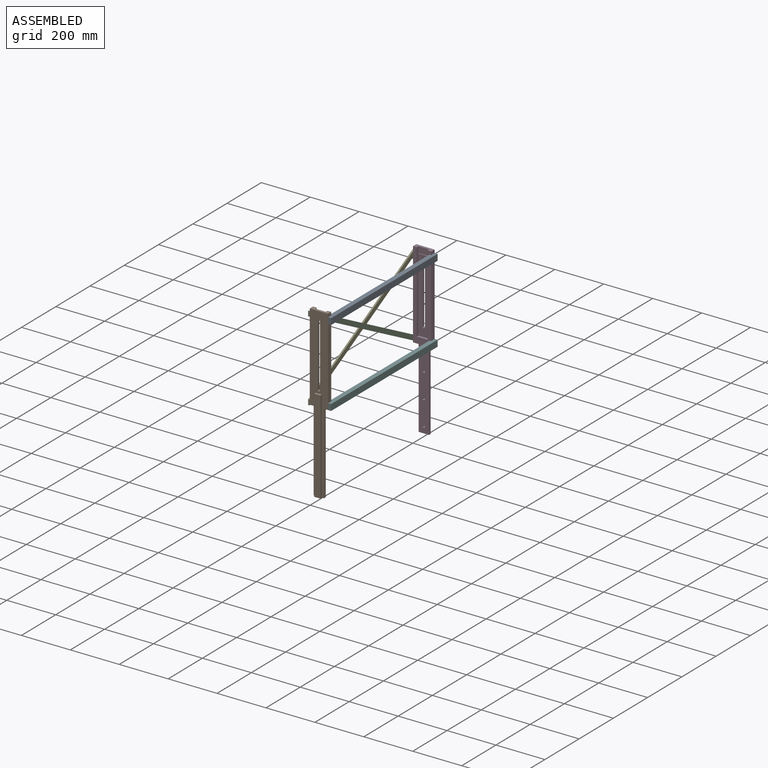
[diagram: assembled view]
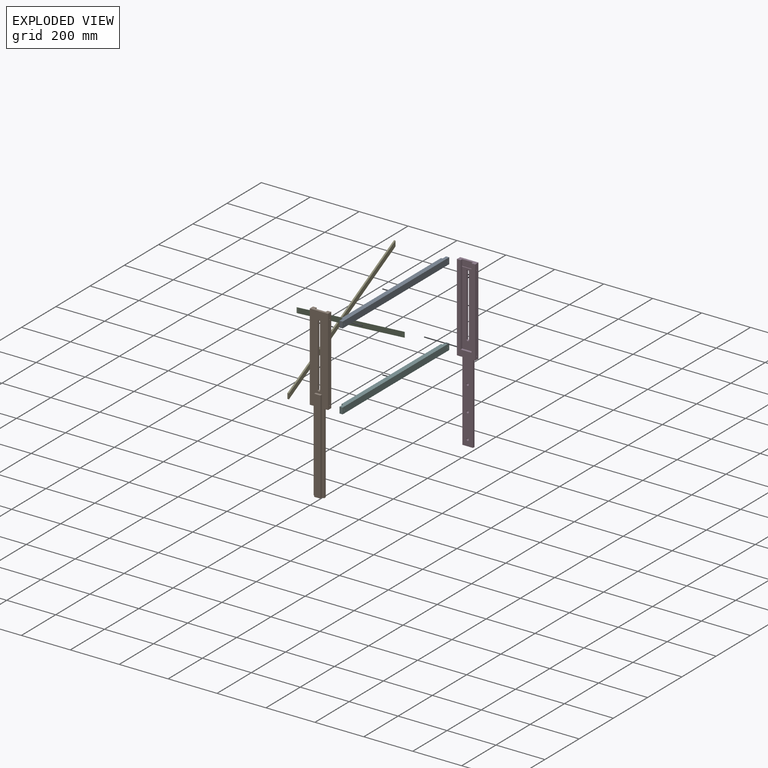
[diagram: exploded view]
GUIDED TOUR — MATED ASSEMBLY (Onshape document 9aa747c73efa29450929ee8a, AutoMate assembly 9aa747c73efa29450929ee8a_d70032300f34ae579669b0f8_8490096e088766e9c1160c59_default)

This assembly has 6 components, labeled P0..P5 below (a component is one placed occurrence of a part; the same part can appear more than once), held together by 9 mates. A mate is a constraint between two components; its type names the relative motion it leaves free:
  FASTENED — locks the two components together rigidly (no relative motion),
  PLANAR — leaves sliding in the plane through the listed point (normal = the listed direction) and rotation about that normal free.
Axis/direction vectors are unit vectors and 'through' points are millimeter coordinates, both in the assembly's world frame.

MATES
  1. FASTENED "Fastened 4": P1 <-> P2, direction (-1.000, 0.000, 0.000) through (-34.02, -343.89, 384.29) mm
  2. PLANAR "Planar 1": P1 <-> P5, direction (1.000, 0.000, 0.000) through (40.59, -343.89, 231.90) mm
  3. PLANAR "Planar 3": P2 <-> P3, direction (1.000, 0.000, 0.000) through (-34.02, -42.26, 225.54) mm
  4. PLANAR "Planar 4": P1 <-> P4, direction (-1.000, 0.000, 0.000) through (-34.02, -343.89, 231.90) mm
  5. FASTENED "Fastened 5": P4 <-> P1, direction (1.000, 0.000, 0.000) through (-34.02, -343.89, 66.79) mm
  6. FASTENED "Fastened 3": P3 <-> P0, direction (1.000, 0.000, 0.000) through (40.59, 259.36, 384.29) mm
  7. FASTENED "Fastened 1": P0 <-> P1, direction (-1.000, 0.000, 0.000) through (40.59, -343.89, 384.29) mm
  8. FASTENED "Fastened 2": P1 <-> P5, direction (1.000, 0.000, 0.000) through (40.59, -343.89, 66.79) mm
  9. PLANAR "Planar 2": P0 <-> P1, direction (-1.000, 0.000, 0.000) through (40.59, -343.08, 384.29) mm

ASSEMBLY ORDER
  1. P4 — the base component [order verified]
  2. P2 [order verified]
  3. P1 [order verified]
  4. P3 [order verified]
  5. P5 [order verified]
  6. P0 [order verified]
(P2 verified with a relaxed clearance tolerance: the source model stores slight part interference there.)
Order-tag legend:
  [order verified] — this step's position reverses a verified removal order: the component was checked to insert without passing through the ones already placed.

Of the 6 components, 2 carry the full construction recipe — the FeatureScript program that regenerates the part's solid from scratch; the rest are supplied as boundary geometry only.
Each toured component is shown spotlighted twice — in the assembled view, then in the exploded view, where a leader line traces a displaced component back to its assembled socket (saturated green if recipe-attached, orange if geometry-only; every other component desaturated gray) — followed by its recipe or geometry summary and the mates that hold it.
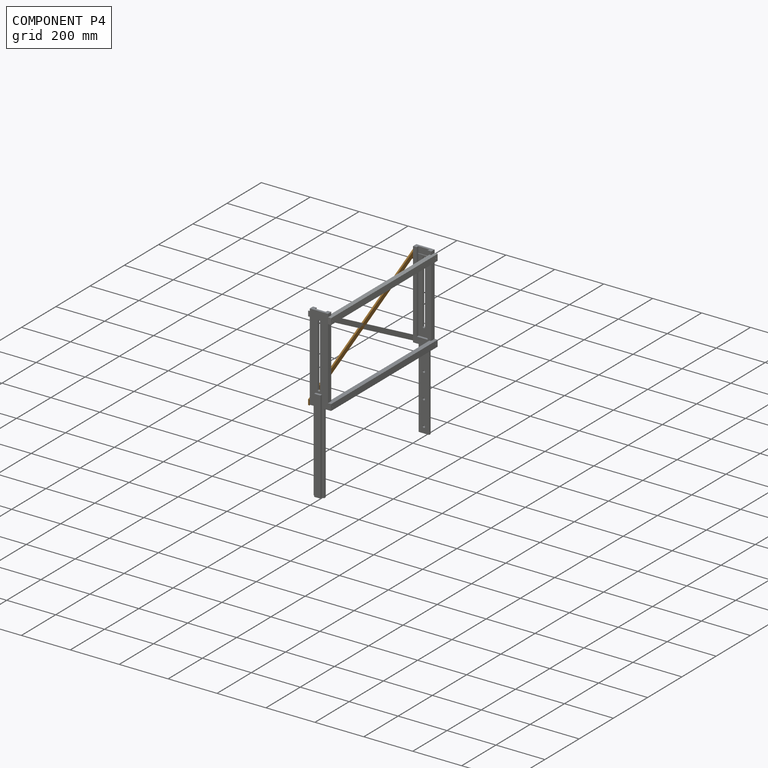
[diagram: component P4 — assembled]
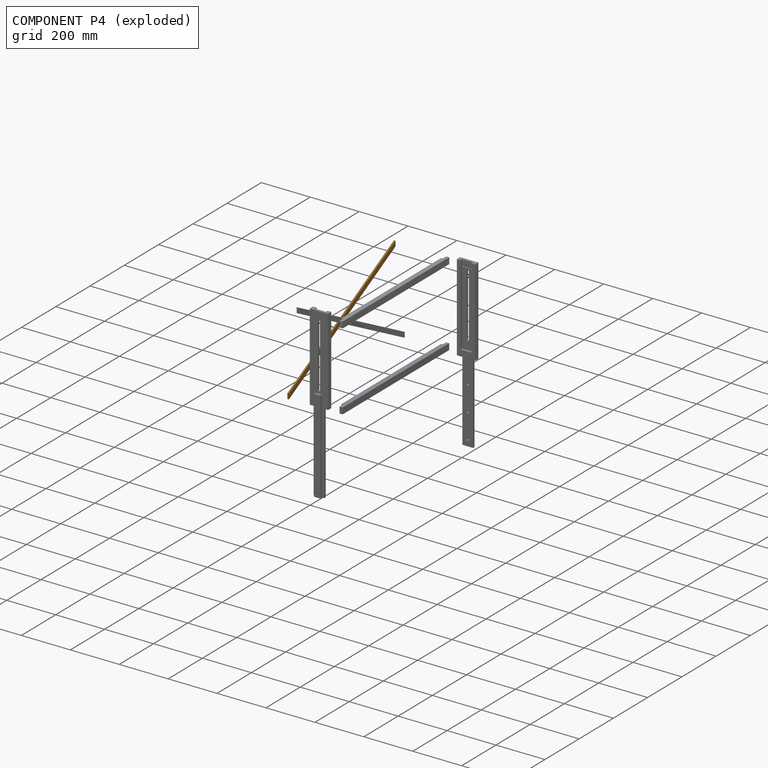
[diagram: component P4 — exploded]
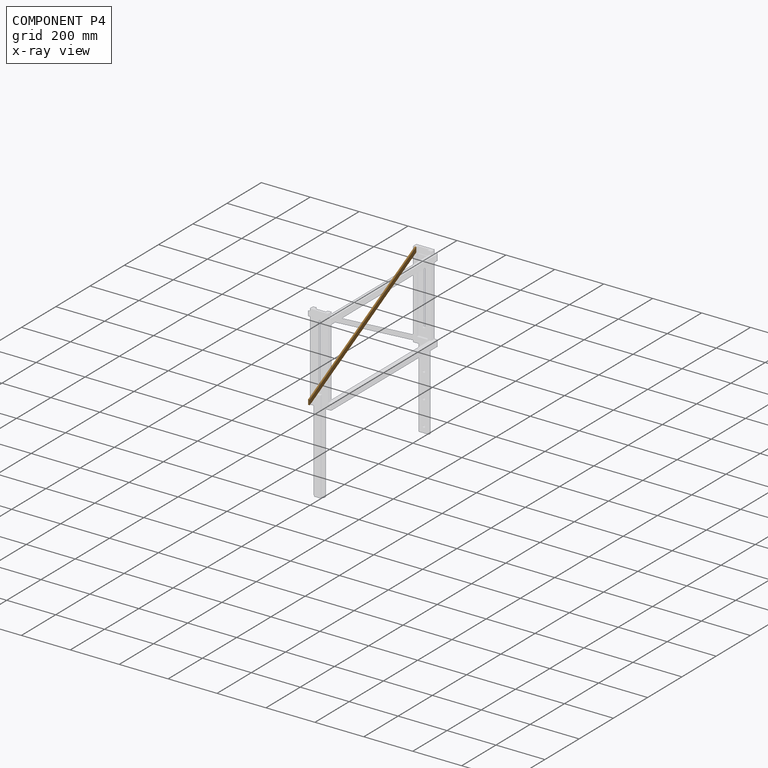
[diagram: component P4 — x-ray view]
COMPONENT P4 — geometry summary (no construction recipe available for this part):
  bounding box: 622.3 x 349.1 x 6.4 mm
  B-rep topology: 1 solid, 8 faces, 40 edges
  volume: 84967 mm^3 (6% of its bounding box)
  symmetry: 2-fold rotationally symmetric about the x axis; mirror-symmetric across its x mid-plane
Held by: PLANAR mate "Planar 4" to P1; FASTENED mate "Fastened 5" to P1.
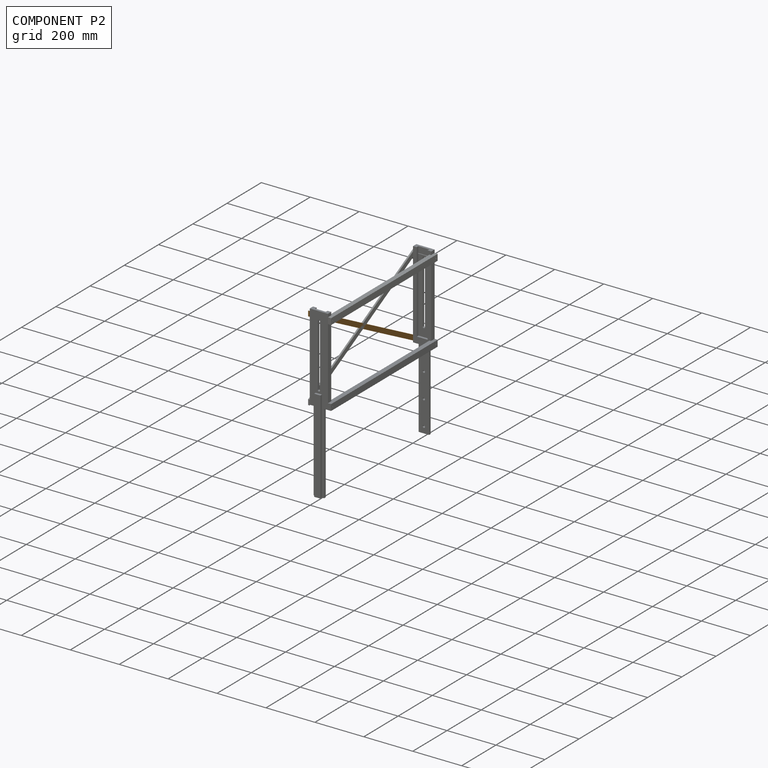
[diagram: component P2 — assembled]
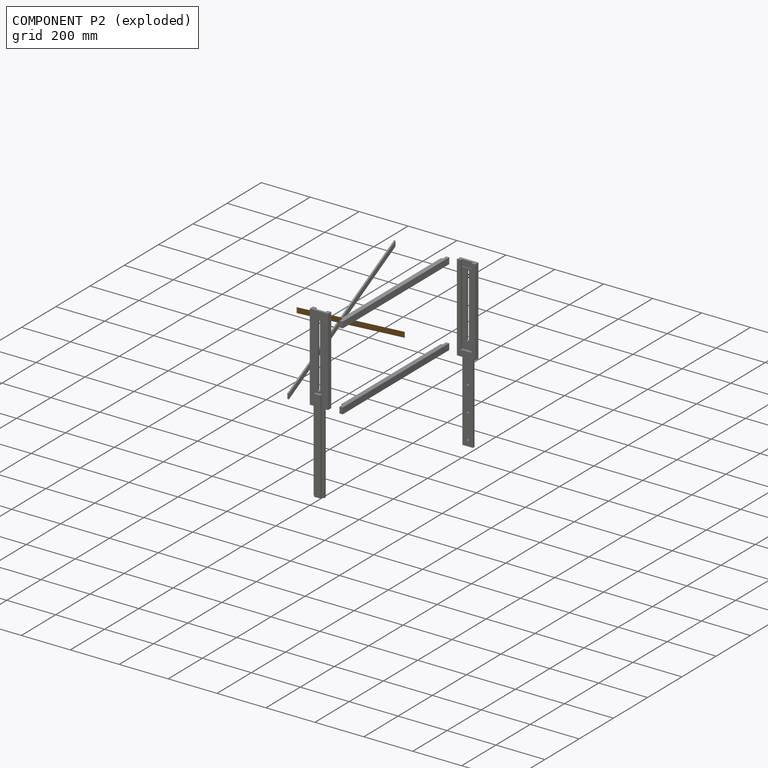
[diagram: component P2 — exploded]
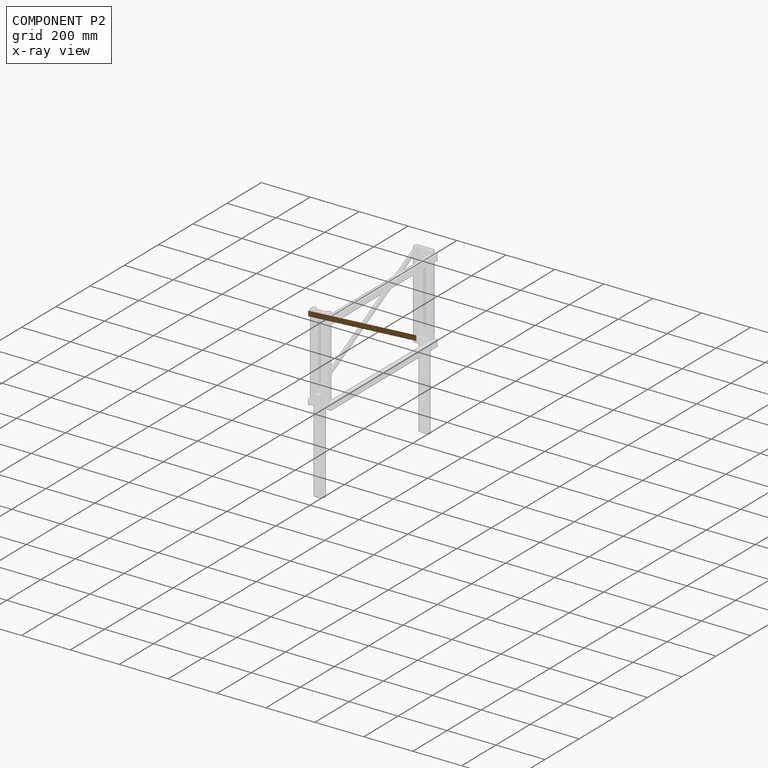
[diagram: component P2 — x-ray view]
COMPONENT P2 — geometry summary (no construction recipe available for this part):
  bounding box: 622.3 x 349.1 x 6.4 mm
  B-rep topology: 1 solid, 8 faces, 40 edges
  volume: 84967 mm^3 (6% of its bounding box)
  symmetry: 2-fold rotationally symmetric about the x axis; mirror-symmetric across its x mid-plane
Held by: FASTENED mate "Fastened 4" to P1; PLANAR mate "Planar 3" to P3.
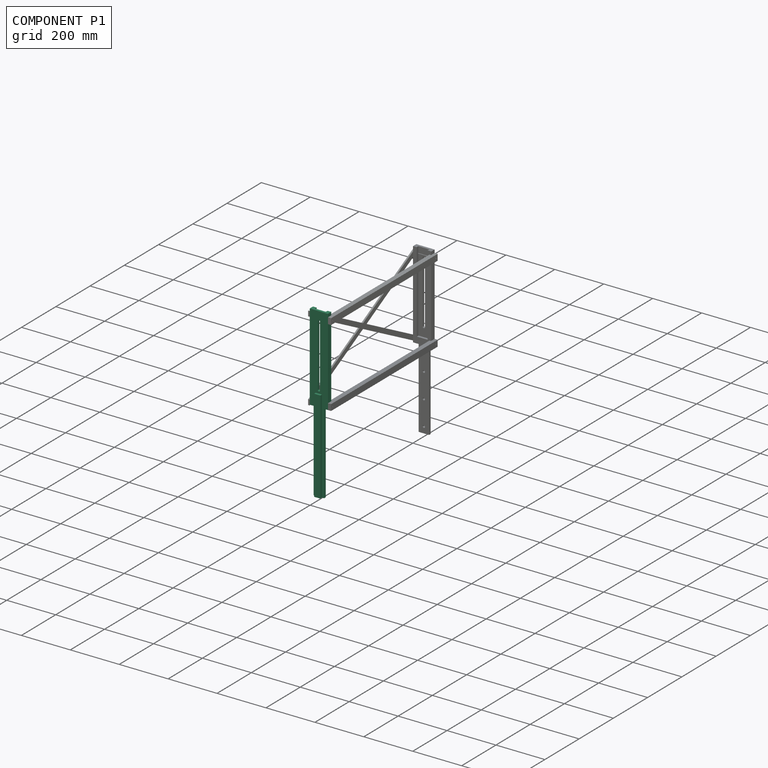
[diagram: component P1 — assembled]
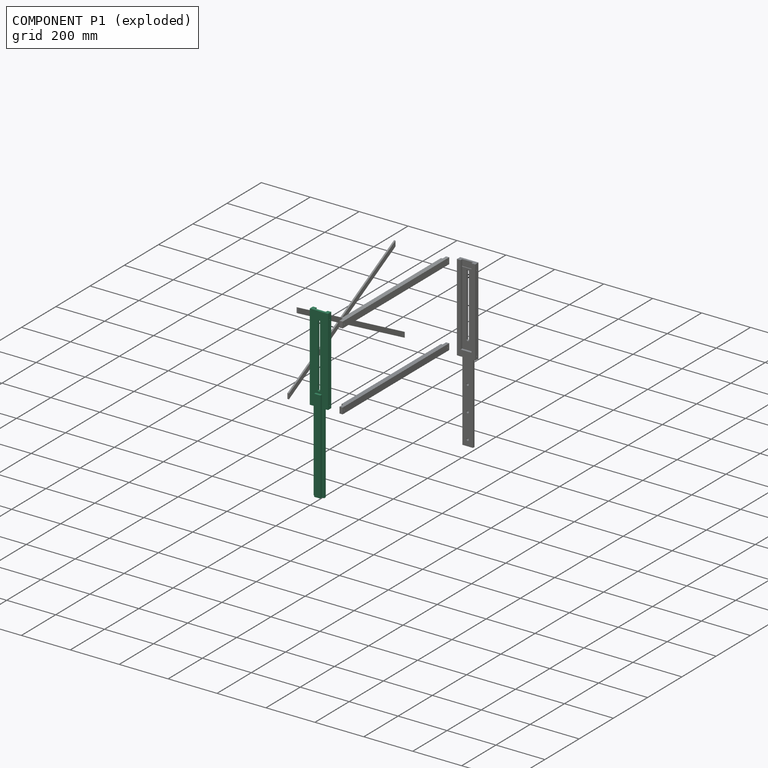
[diagram: component P1 — exploded]
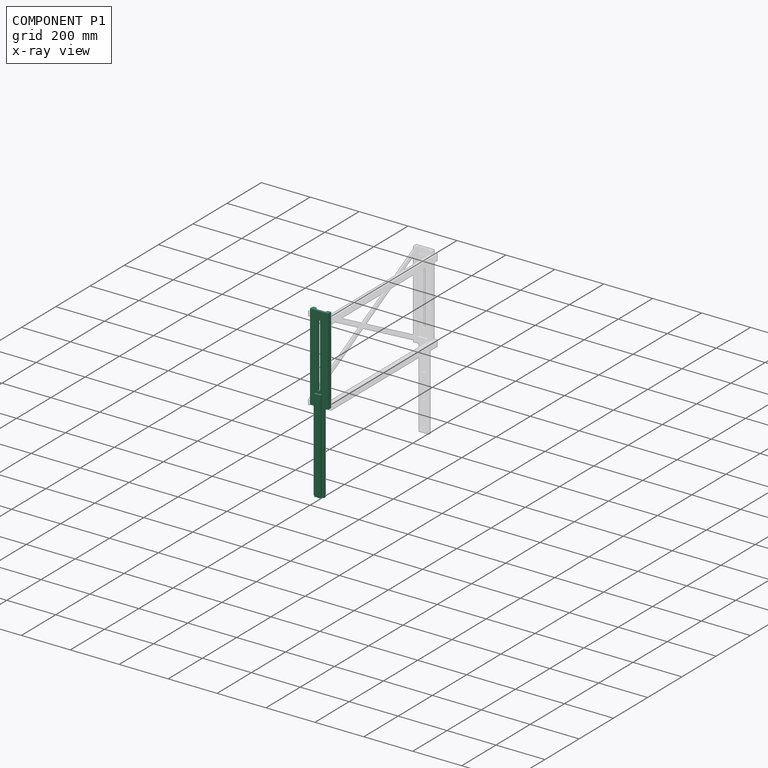
[diagram: component P1 — x-ray view]
COMPONENT P1 — recipe-attached (CADFS 00436313, mesh-verified: the recipe's output STEP matches this component's geometry to below the mesh-comparison resolution (tessellation chordal tolerance ~1.04 mm)).
Held by: FASTENED mate "Fastened 4" to P2; PLANAR mate "Planar 1" to P5; PLANAR mate "Planar 4" to P4; FASTENED mate "Fastened 5" to P4; FASTENED mate "Fastened 1" to P0; FASTENED mate "Fastened 2" to P5; PLANAR mate "Planar 2" to P0.
Construction recipe (FeatureScript — the CAD program that rebuilds this solid; sketch coordinates are in the units given by the * unit suffixes, e.g. mm):

FeatureScript 1511;
import(path : "onshape/std/geometry.fs", version : "1511.0");
import(path : "onshape/std/common.fs", version : "1511.0");
const mm = millimeter;
const VERTEX = EntityType.VERTEX;
const EDGE = EntityType.EDGE;
const FACE = EntityType.FACE;
const BODY = EntityType.BODY;
function v(x, y){return vector(x, y);}
function OD(order){return orderDisambiguation(order);}
function OSD(set){return originalSetDisambiguation(set);}
function TD(topology){return topologyDisambiguation(topology);}
function TDD(query){return trueDependencyDisambiguation(query);}
function sQuery(a, b, c) {return sketchEntityQuery(a, b, c);}

annotation { "Feature Type Name" : "Feature", "Feature Type Description" : "" }
export const myFeature = defineFeature(function(context is Context, id is Id, definition is map)
    precondition{}
    {
        {
            var Q0;
            Q0=qCreatedBy(makeId("Top.planeOp"),FACE);
            var sketch = newSketch(context, id + "F0", { "sketchPlane" : qUnion([Q0])});
            skLineSegment(sketch, "E0.bottom", {"start": v(37.3, -9.52) * mm, "end": v(-37.3, -9.53) * mm});
            skLineSegment(sketch, "E0.top", {"start": v(37.3, 9.53) * mm, "end": v(-37.3, 9.53) * mm});
            skLineSegment(sketch, "E0.left", {"start": v(37.3, -9.52) * mm, "end": v(37.3, 9.53) * mm});
            skLineSegment(sketch, "E0.right", {"start": v(-37.3, -9.53) * mm, "end": v(-37.3, 9.53) * mm});
            skPoint(sketch, "E0.middle", {"position": v(0, 0) * mm});
            skSolve(sketch);
        }
        {
            var Q0;
            Q0 = qSketchRegion(id + "F0", true);
            extrude(context, id + "F1", {"entities" : qUnion([Q0]), "endBound" : BoundingType.SYMMETRIC, "depth" : 685.8 * mm});
        }
        {
            var Q0;
            Q0=makeQuery(id+"F1.opExtrude","CAP_FACE",FACE,{"disambiguationData":[OSD([sQuery(id+"F0.wireOp",EDGE,"E0.bottom"),sQuery(id+"F0.wireOp",EDGE,"E0.top"),sQuery(id+"F0.wireOp",EDGE,"E0.left"),sQuery(id+"F0.wireOp",EDGE,"E0.right")])],"isStart":true});
            var sketch = newSketch(context, id + "F2", { "sketchPlane" : qUnion([Q0])});
            skLineSegment(sketch, "E1.bottom", {"start": v(-12.7, -19.05) * mm, "end": v(12.7, -19.05) * mm});
            skLineSegment(sketch, "E1.top", {"start": v(-12.7, 0) * mm, "end": v(12.7, 0) * mm});
            skLineSegment(sketch, "E1.left", {"start": v(-12.7, -19.05) * mm, "end": v(-12.7, 0) * mm});
            skLineSegment(sketch, "E1.right", {"start": v(12.7, -19.05) * mm, "end": v(12.7, 0) * mm});
            skPoint(sketch, "E1.middle", {"position": v(0, -9.52) * mm});
            skSolve(sketch);
        }
        {
            var Q0;
            Q0 = qSketchRegion(id + "F2", true);
            extrude(context, id + "F3", {"entities" : qUnion([Q0]), "operationType" : NewBodyOperationType.ADD, "oppositeDirection" : true, "depth" : 381 * mm, "offsetDistance" : 25.4 * mm});
        }
        {
            var Q0;
            Q0=makeQuery(id+"F1.opExtrude","CAP_FACE",FACE,{"disambiguationData":[OSD([sQuery(id+"F0.wireOp",EDGE,"E0.bottom"),sQuery(id+"F0.wireOp",EDGE,"E0.top"),sQuery(id+"F0.wireOp",EDGE,"E0.left"),sQuery(id+"F0.wireOp",EDGE,"E0.right")])],"isStart":false});
            var sketch = newSketch(context, id + "F4", { "sketchPlane" : qUnion([Q0])});
            skLineSegment(sketch, "E2.bottom", {"start": v(22.23, -19.05) * mm, "end": v(-22.22, -19.05) * mm});
            skLineSegment(sketch, "E2.top", {"start": v(22.23, 0) * mm, "end": v(-22.22, 0) * mm});
            skLineSegment(sketch, "E2.left", {"start": v(22.23, -19.05) * mm, "end": v(22.23, 0) * mm});
            skLineSegment(sketch, "E2.right", {"start": v(-22.22, -19.05) * mm, "end": v(-22.22, 0) * mm});
            skPoint(sketch, "E2.middle", {"position": v(0, -9.52) * mm});
            skSolve(sketch);
        }
        {
            var Q0;
            Q0 = qSketchRegion(id + "F4", true);
            extrude(context, id + "F5", {"entities" : qUnion([Q0]), "operationType" : NewBodyOperationType.REMOVE, "oppositeDirection" : true, "depth" : 330.2 * mm});
        }
        {
            var Q0;
            Q0=makeQuery(id+"F1.opExtrude","CAP_FACE",FACE,{"disambiguationData":[OSD([sQuery(id+"F0.wireOp",EDGE,"E0.bottom"),sQuery(id+"F0.wireOp",EDGE,"E0.top"),sQuery(id+"F0.wireOp",EDGE,"E0.left"),sQuery(id+"F0.wireOp",EDGE,"E0.right")])],"isStart":true});
            var sketch = newSketch(context, id + "F6", { "sketchPlane" : qUnion([Q0])});
            skLineSegment(sketch, "E3.bottom", {"start": v(-37.3, -9.53) * mm, "end": v(-21.43, -9.53) * mm});
            skLineSegment(sketch, "E3.top", {"start": v(-37.3, 9.53) * mm, "end": v(-21.43, 9.53) * mm});
            skLineSegment(sketch, "E3.left", {"start": v(-37.3, -9.53) * mm, "end": v(-37.3, 9.53) * mm});
            skLineSegment(sketch, "E3.right", {"start": v(-21.43, -9.53) * mm, "end": v(-21.43, 9.53) * mm});
            skLineSegment(sketch, "E4.bottom", {"start": v(37.3, -9.53) * mm, "end": v(21.43, -9.53) * mm});
            skLineSegment(sketch, "E4.top", {"start": v(37.3, 9.53) * mm, "end": v(21.43, 9.53) * mm});
            skLineSegment(sketch, "E4.left", {"start": v(37.3, -9.53) * mm, "end": v(37.3, 9.53) * mm});
            skLineSegment(sketch, "E4.right", {"start": v(21.43, -9.53) * mm, "end": v(21.43, 9.53) * mm});
            skLineSegment(sketch, "E5.bottom", {"start": v(37.3, -9.53) * mm, "end": v(30.96, -9.53) * mm});
            skLineSegment(sketch, "E5.top", {"start": v(37.3, 9.52) * mm, "end": v(30.96, 9.52) * mm});
            skLineSegment(sketch, "E5.left", {"start": v(37.3, -9.53) * mm, "end": v(37.3, 9.52) * mm});
            skLineSegment(sketch, "E5.right", {"start": v(30.96, -9.53) * mm, "end": v(30.96, 9.52) * mm});
            skLineSegment(sketch, "E6.bottom", {"start": v(37.3, 9.52) * mm, "end": v(37.3, 9.52) * mm});
            skLineSegment(sketch, "E6.top", {"start": v(37.3, 9.52) * mm, "end": v(37.3, 9.52) * mm});
            skLineSegment(sketch, "E6.left", {"start": v(37.3, 9.52) * mm, "end": v(37.3, 9.52) * mm});
            skLineSegment(sketch, "E6.right", {"start": v(37.3, 9.52) * mm, "end": v(37.3, 9.52) * mm});
            skLineSegment(sketch, "E7.bottom", {"start": v(-37.3, -9.53) * mm, "end": v(-30.96, -9.53) * mm});
            skLineSegment(sketch, "E7.top", {"start": v(-37.3, 9.52) * mm, "end": v(-30.96, 9.52) * mm});
            skLineSegment(sketch, "E7.left", {"start": v(-37.3, -9.53) * mm, "end": v(-37.3, 9.52) * mm});
            skLineSegment(sketch, "E7.right", {"start": v(-30.96, -9.53) * mm, "end": v(-30.96, 9.52) * mm});
            skLineSegment(sketch, "E8.0.0", {"start": v(-22.22, 0) * mm, "end": v(-22.22, 9.53) * mm});
            skLineSegment(sketch, "E8.0.1", {"start": v(-22.22, 9.53) * mm, "end": v(22.23, 9.52) * mm});
            skLineSegment(sketch, "E8.0.2", {"start": v(22.23, 9.52) * mm, "end": v(22.23, 0) * mm});
            skLineSegment(sketch, "E8.0.3", {"start": v(22.23, 0) * mm, "end": v(-22.22, 0) * mm});
            skSolve(sketch);
        }
        {
            var Q0;
            Q0 = qSketchRegion(id + "F6", true);
            extrude(context, id + "F7", {"entities" : qUnion([Q0]), "operationType" : NewBodyOperationType.REMOVE, "oppositeDirection" : true, "depth" : 330.2 * mm});
        }
        {
            var Q0;
            Q0=makeQuery(id+"F1.opExtrude","SWEPT_FACE",FACE,{"disambiguationData":[OSD([sQuery(id+"F0.wireOp",EDGE,"E0.top")])]});
            var sketch = newSketch(context, id + "F8", { "sketchPlane" : qUnion([Q0])});
            skPoint(sketch, "E9", {"position": v(0, -317.5) * mm});
            skPoint(sketch, "E10", {"position": v(0, -215.9) * mm});
            skPoint(sketch, "E11", {"position": v(0, -114.3) * mm});
            skPoint(sketch, "E12", {"position": v(0, 50.8) * mm});
            skPoint(sketch, "E13", {"position": v(0, 304.8) * mm});
            skSolve(sketch);
        }
        {
            var Q0;
            Q0=sQuery(id+"F8.wireOp",VERTEX,"E9");
            var Q1;
            Q1=sQuery(id+"F8.wireOp",VERTEX,"E10");
            var Q2;
            Q2=sQuery(id+"F8.wireOp",VERTEX,"E11");
            var Q3;
            Q3=sQuery(id+"F8.wireOp",VERTEX,"E12");
            var Q4;
            Q4=sQuery(id+"F8.wireOp",VERTEX,"E13");
            var Q5;
            Q5=makeQuery(id+"F1.opExtrude","SWEPT_BODY",BODY,{"disambiguationData":[OSD([sQuery(id+"F0.wireOp",EDGE,"E0.bottom"),sQuery(id+"F0.wireOp",EDGE,"E0.top"),sQuery(id+"F0.wireOp",EDGE,"E0.left"),sQuery(id+"F0.wireOp",EDGE,"E0.right")])]});
            hole(context, id + "F9", {"style" : HoleStyle.SIMPLE, "endStyle" : HoleEndStyle.THROUGH, "holeDiameter" : 9.52 * mm, "isTappedThrough" : true, "tappedDepth" : 12.7 * mm, "tapClearance" : 3, "locations" : qUnion([Q0, Q1, Q2, Q3, Q4]), "scope" : qUnion([Q5])});
        }
        {
            var Q0;
            Q0=makeQuery(id+"F1.opExtrude","SWEPT_FACE",FACE,{"disambiguationData":[OSD([sQuery(id+"F0.wireOp",EDGE,"E0.top")])]});
            var sketch = newSketch(context, id + "F10", { "sketchPlane" : qUnion([Q0])});
            skLineSegment(sketch, "E14.bottom", {"start": v(-4.76, 304.58) * mm, "end": v(4.75, 304.58) * mm});
            skLineSegment(sketch, "E14.top", {"start": v(-4.76, 50.42) * mm, "end": v(4.75, 50.42) * mm});
            skLineSegment(sketch, "E14.left", {"start": v(-4.76, 304.58) * mm, "end": v(-4.76, 50.42) * mm});
            skLineSegment(sketch, "E14.right", {"start": v(4.75, 304.58) * mm, "end": v(4.75, 50.42) * mm});
            skSolve(sketch);
        }
        {
            var Q0;
            Q0 = qSketchRegion(id + "F10", true);
            extrude(context, id + "F11", {"entities" : qUnion([Q0]), "operationType" : NewBodyOperationType.REMOVE, "endBound" : BoundingType.THROUGH_ALL, "oppositeDirection" : true, "depth" : 25.4 * mm});
        }
        {
            var Q0;
            Q0=makeQuery(id+"F1.opExtrude","SWEPT_FACE",FACE,{"disambiguationData":[OSD([sQuery(id+"F0.wireOp",EDGE,"E0.right")])]});
            var sketch = newSketch(context, id + "F12", { "sketchPlane" : qUnion([Q0])});
            skPoint(sketch, "E15", {"position": v(0, 317.5) * mm});
            skPoint(sketch, "E16", {"position": v(0, 0) * mm});
            skSolve(sketch);
        }
        {
            var Q0;
            Q0=sQuery(id+"F12.wireOp",VERTEX,"E15");
            var Q1;
            Q1=sQuery(id+"F12.wireOp",VERTEX,"E16");
            var Q2;
            Q2=makeQuery(id+"F1.opExtrude","SWEPT_BODY",BODY,{"disambiguationData":[OSD([sQuery(id+"F0.wireOp",EDGE,"E0.bottom"),sQuery(id+"F0.wireOp",EDGE,"E0.top"),sQuery(id+"F0.wireOp",EDGE,"E0.left"),sQuery(id+"F0.wireOp",EDGE,"E0.right")])]});
            hole(context, id + "F13", {"style" : HoleStyle.SIMPLE, "endStyle" : HoleEndStyle.THROUGH, "holeDiameter" : 3.17 * mm, "isTappedThrough" : true, "tappedDepth" : 12.7 * mm, "tapClearance" : 3, "locations" : qUnion([Q0, Q1]), "scope" : qUnion([Q2])});
        }
    });
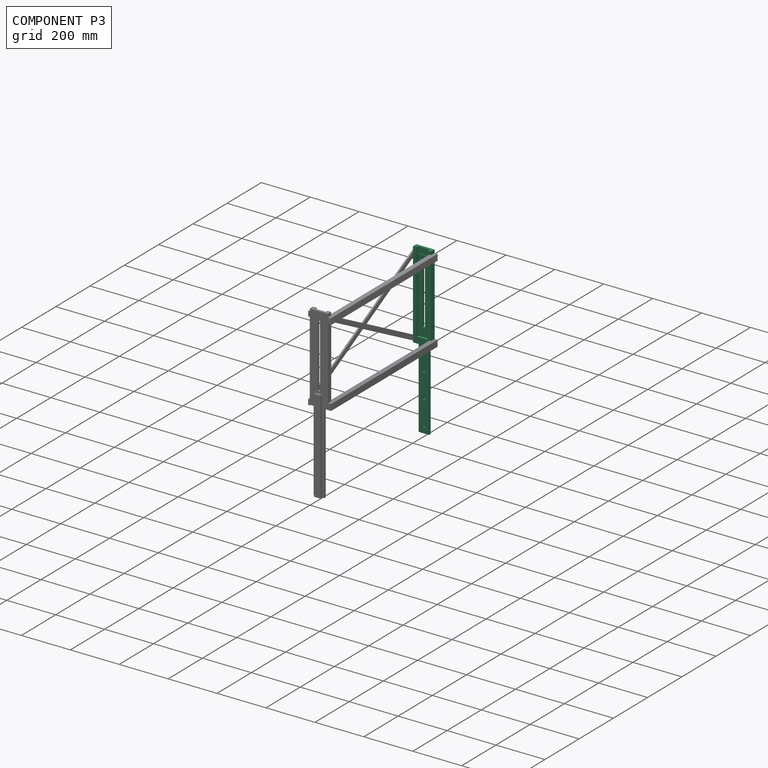
[diagram: component P3 — assembled]
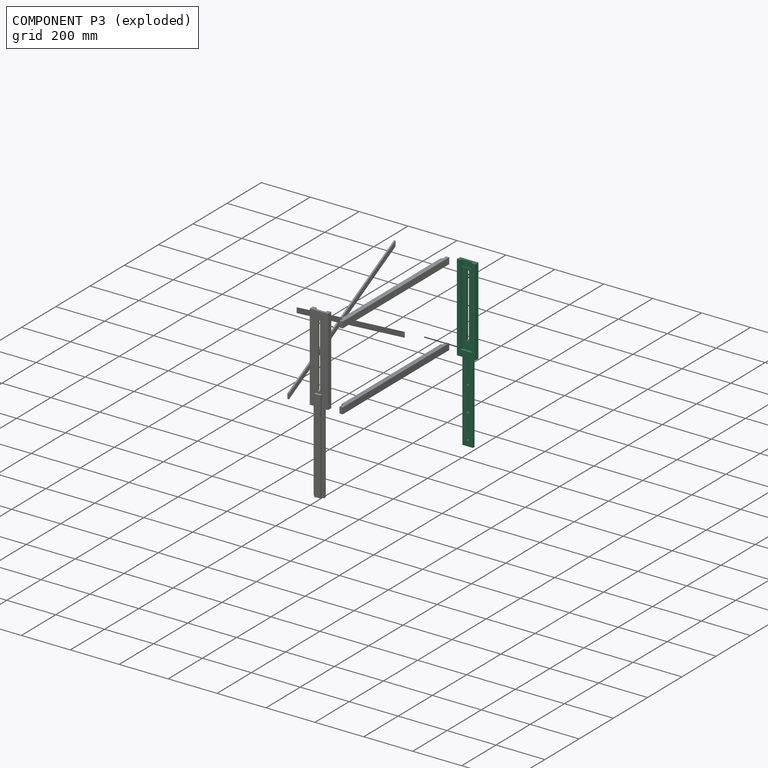
[diagram: component P3 — exploded]
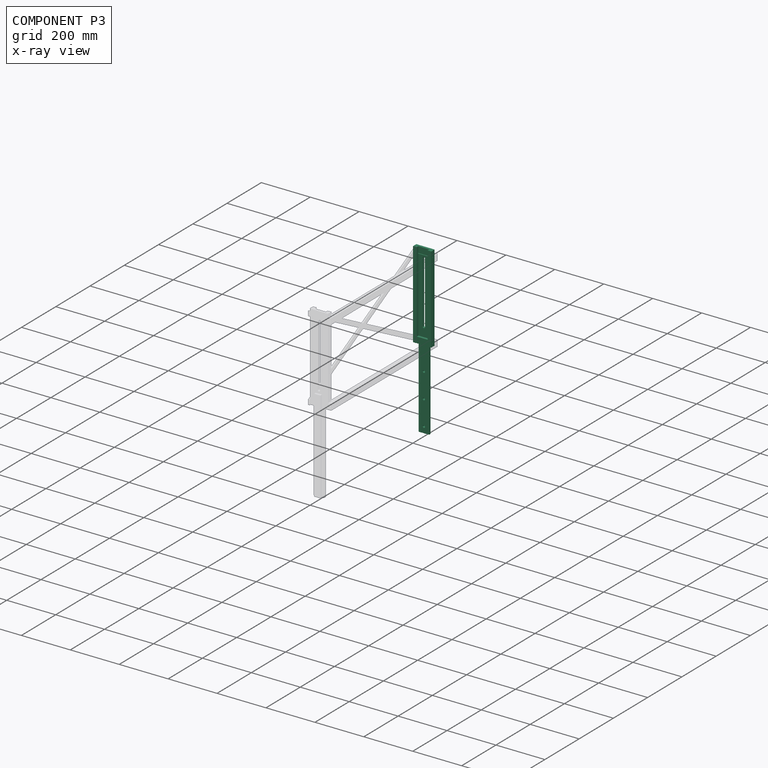
[diagram: component P3 — x-ray view]
COMPONENT P3 — same part as P1 (CADFS 00436313); its construction recipe is shown at P1.
Held by: PLANAR mate "Planar 3" to P2; FASTENED mate "Fastened 3" to P0.
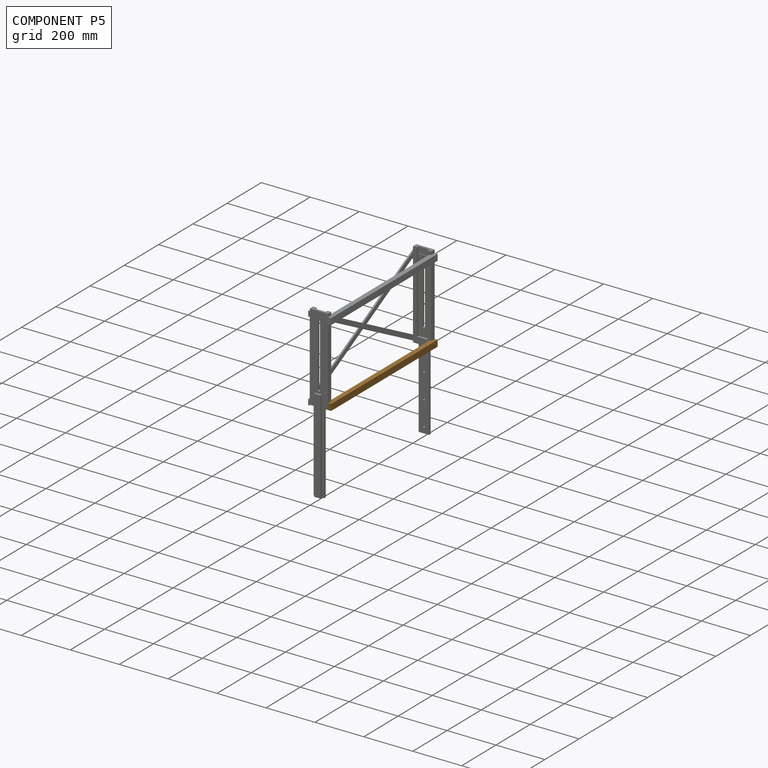
[diagram: component P5 — assembled]
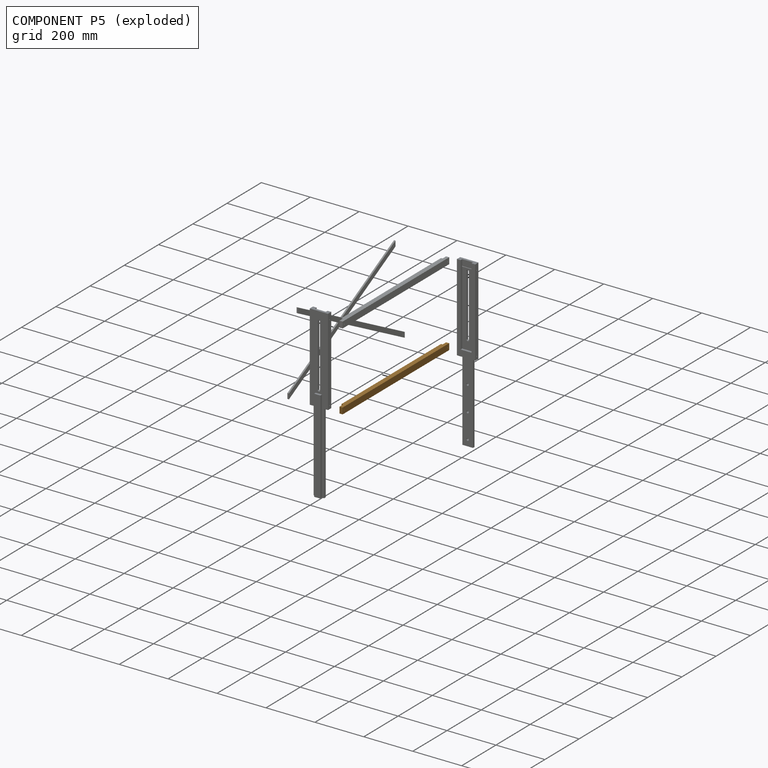
[diagram: component P5 — exploded]
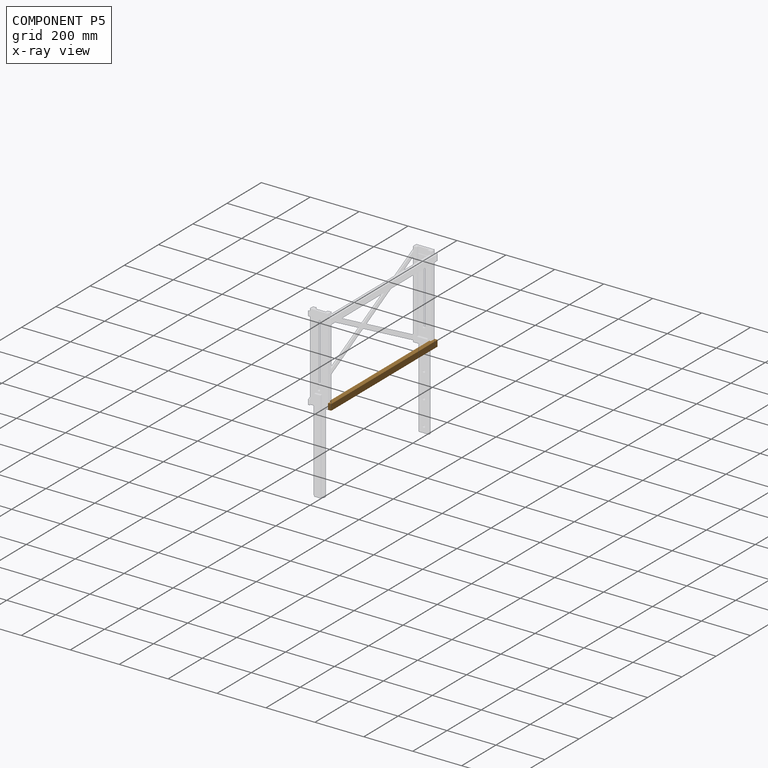
[diagram: component P5 — x-ray view]
COMPONENT P5 — geometry summary (no construction recipe available for this part):
  bounding box: 622.3 x 25.4 x 19.1 mm
  B-rep topology: 1 solid, 12 faces, 64 edges
  volume: 294254 mm^3 (98% of its bounding box)
  symmetry: 2-fold rotationally symmetric about the x axis; mirror-symmetric across its y mid-plane, z mid-plane
Held by: PLANAR mate "Planar 1" to P1; FASTENED mate "Fastened 2" to P1.
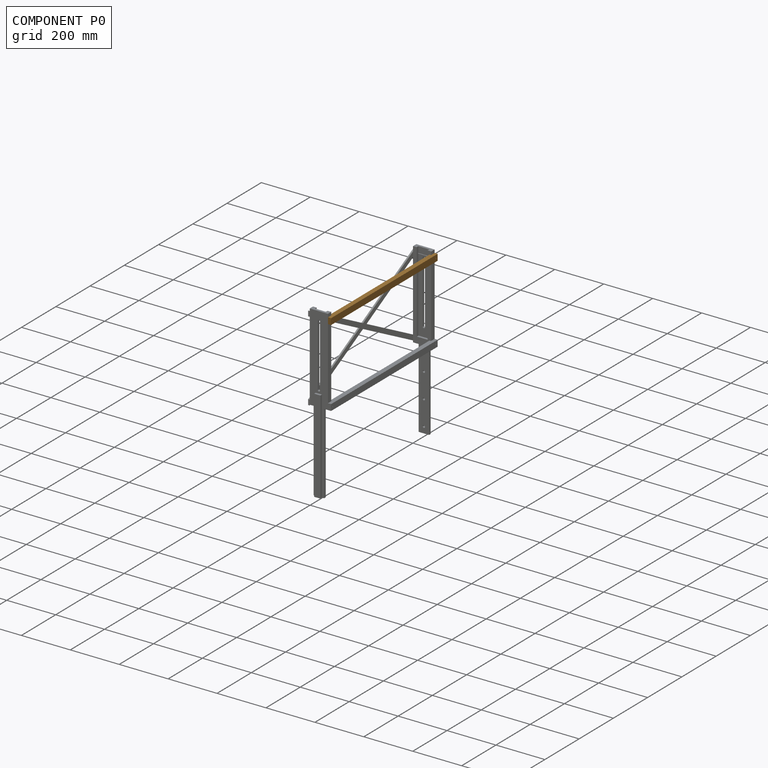
[diagram: component P0 — assembled]
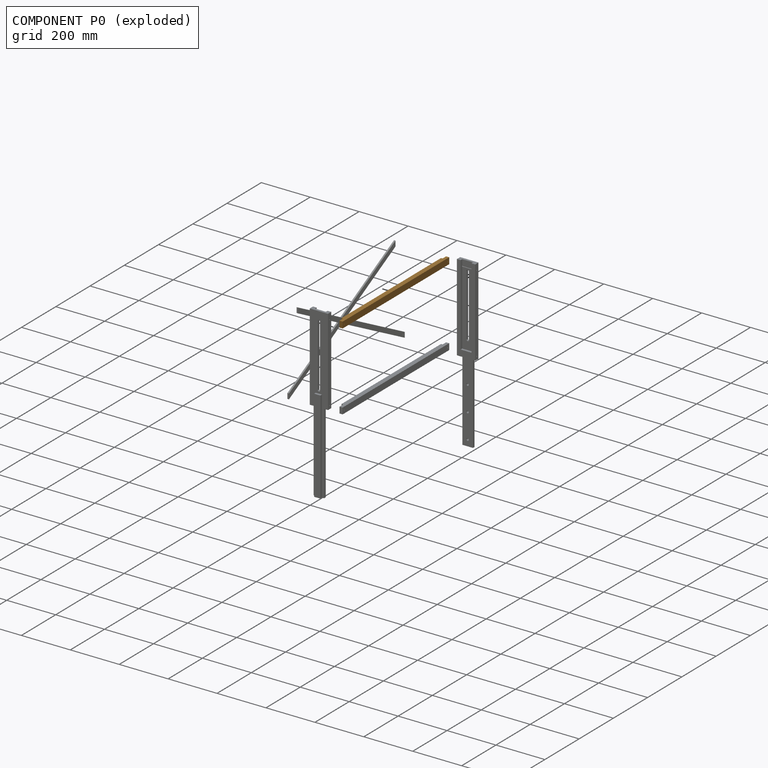
[diagram: component P0 — exploded]
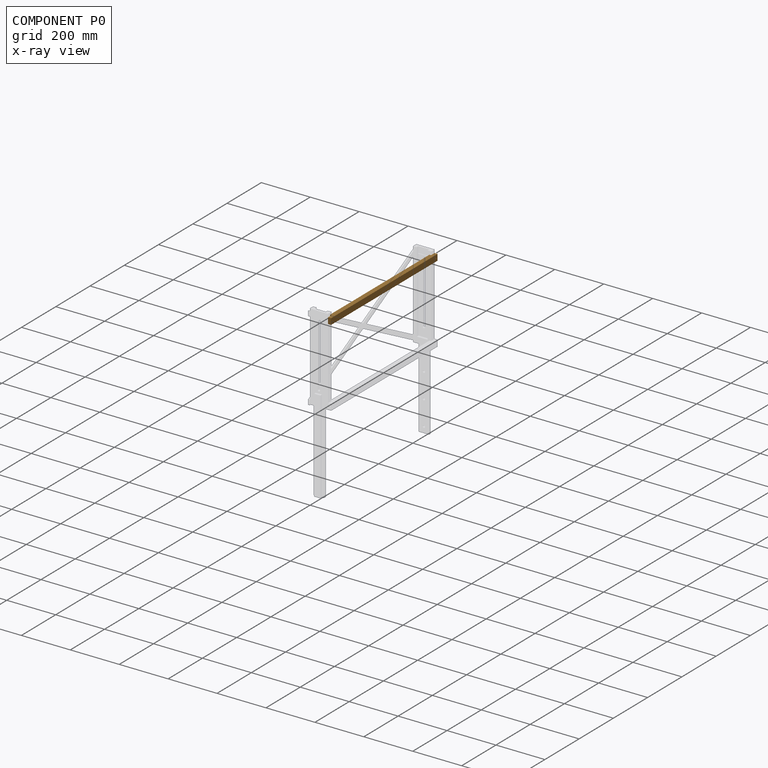
[diagram: component P0 — x-ray view]
COMPONENT P0 — geometry summary (no construction recipe available for this part):
  bounding box: 622.3 x 25.4 x 19.1 mm
  B-rep topology: 1 solid, 12 faces, 64 edges
  volume: 294254 mm^3 (98% of its bounding box)
  symmetry: 2-fold rotationally symmetric about the x axis; mirror-symmetric across its y mid-plane, z mid-plane
Held by: FASTENED mate "Fastened 3" to P3; FASTENED mate "Fastened 1" to P1; PLANAR mate "Planar 2" to P1.
PROVENANCE & LICENSES
Assembly (occurrences, transforms, mates, per-part STEP geometry): AutoMate dataset, Zenodo record 7776208, CC0.
Construction recipes: CADFS (HuggingFace VladPyatov/CADFS, CC-BY-4.0, layered over the ABC dataset), FeatureScript reconstruction programs keyed by ABC model id.
Join: ABC meta listings map ABC model id -> Onshape documentId; within a shared document, parts are matched by geometric signature (bounding-box dims + volume at 0.1% relative tolerance, exact B-rep face/solid counts).
Verification: 2 of this assembly's 6 components carry a recipe attachment, and every attachment is mesh-verified: the CADFS STEP and the AutoMate member STEP were compared as meshes in their shared local frame (symmetric sampled-point-to-mesh distance); worst across the 2 attachments: below the mesh-comparison resolution (tessellation chordal tolerance ~1.04 mm) on a 690 mm part.
Renders: orthographic iso camera (az 35 / el 25); the floor grid conveys scale (grid pitch printed in each image; no ruler). In the exploded view each component is displaced by its stored offset vector: the offsets alone carry the explosion direction (mate normal/axis signs are not orientation cues and do not encode it), and separation distances are assigned per mate-chain, not proportionally to assembly-order depth.
